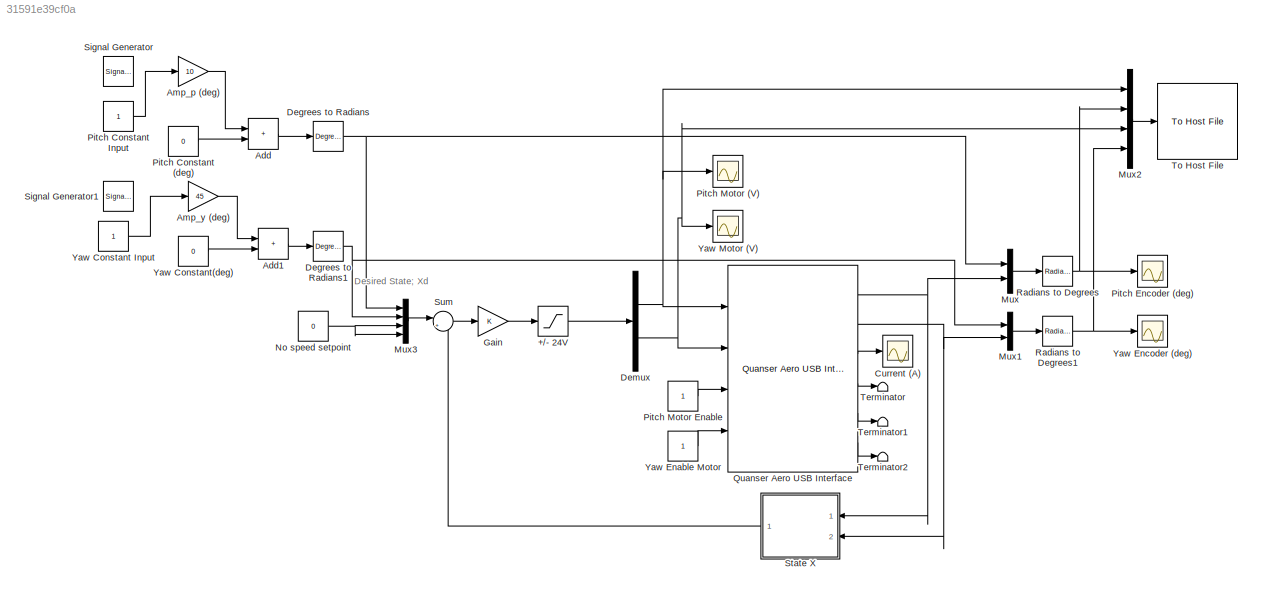
MODEL slx_31591e39cf0a
KIND model
CONFIG AbsTol = auto
CONFIG EnableMultiTasking = on
CONFIG FixedStep = 0.002
CONFIG MaxStep = auto
CONFIG MinStep = auto
CONFIG PreLoadFcn = quanser_aero_lqr
CONFIG RelTol = 1e-3
CONFIG SampleTimeConstraint = Unconstrained
CONFIG Solver = ode1
CONFIG SolverName = ode1
CONFIG StartTime = 0.0
CONFIG StopTime = inf
BLOCK [Saturate] +//- 24V
  LowerLimit = -24
  UpperLimit = 24
BLOCK [Sum] Add
  IconShape = rectangular
  Ports = [2, 1]
BLOCK [Sum] Add1
  IconShape = rectangular
  Ports = [2, 1]
BLOCK [Gain] Amp_p (deg)
  Gain = 10
BLOCK [Gain] Amp_y (deg)
  Gain = 45
BLOCK [Scope] Current (A)
  Floating = off
  NumInputPorts = 1
  Ports = [1]
  ScopeSpecificationString = C++SS(StrPVP('Location','[1218, 655, 1542, 894]'),StrPVP('Open','off'),MxPVP('AxesTitles',54,'struct(''axes1'',''%<SignalLabel>'')'),MxPVP('ScopeGraphics',57,'struct(''FigureColor'',''[0.5 0.5 0.5]'',''AxesColor'',''[0 0 0]'',''AxesTickColor'',''[1 1 1]'',''LineColors'',''[1 1 0;1 0 1;0 1 1;1 0 0;0 1 0;0 0 1]'',''LineStyles'',''-|-|-|-|-|-'',''LineWidths'',''[0.5 0.5 0.5 0.5 0.5 0.5]'',''MarkerSty...<+250ch>
BLOCK [Reference] Degrees to Radians  REF=simulink_extras/Transformations/Degrees to
Radians
  Ports = [1, 1]
  SourceBlock = simulink_extras/Transformations/Degrees to\nRadians
  SourceProductBaseCode = SL
  SourceType = DegreesToRadians
BLOCK [Reference] Degrees to Radians1  REF=simulink_extras/Transformations/Degrees to
Radians
  Ports = [1, 1]
  SourceBlock = simulink_extras/Transformations/Degrees to\nRadians
  SourceProductBaseCode = SL
  SourceType = DegreesToRadians
BLOCK [Demux] Demux
  Outputs = 2
  Ports = [1, 2]
BLOCK [Gain] Gain
  Gain = K
  Multiplication = Matrix(K*u)
BLOCK [Mux] Mux
  DisplayOption = bar
  Inputs = 2
  Ports = [2, 1]
BLOCK [Mux] Mux1
  DisplayOption = bar
  Inputs = 2
  Ports = [2, 1]
BLOCK [Mux] Mux2
  DisplayOption = bar
  Ports = [4, 1]
BLOCK [Mux] Mux3
  DisplayOption = bar
  Ports = [4, 1]
BLOCK [Constant] No speed setpoint
  Value = 0
BLOCK [Constant] Pitch Constant (deg)
  Value = 0
BLOCK [Constant] Pitch Constant Input
BLOCK [Scope] Pitch Encoder (deg)
  Floating = off
  NumInputPorts = 1
  Ports = [1]
  ScopeSpecificationString = Simulink.scopes.TimeScopeBlockCfg('CurrentConfiguration', extmgr.ConfigurationSet(extmgr.Configuration('Core','General UI',true),extmgr.Configuration('Core','Source UI',true),extmgr.Configuration('Sources','WiredSimulink',true,'DataLoggingVariableName','ScopeData3','DataLoggingMaxPoints','15000','DataLoggingLimitDataPoints',true,'DataLoggingSaveFormat','Array','DataLoggingDecimation','1','DataLogg...<+1786ch>
BLOCK [Scope] Pitch Motor (V)
  Floating = off
  NumInputPorts = 1
  Ports = [1]
  ScopeSpecificationString = Simulink.scopes.TimeScopeBlockCfg('CurrentConfiguration', extmgr.ConfigurationSet(extmgr.Configuration('Core','General UI',true),extmgr.Configuration('Core','Source UI',true),extmgr.Configuration('Sources','WiredSimulink',true,'DataLoggingVariableName','ScopeData2','DataLoggingMaxPoints','15000','DataLoggingLimitDataPoints',true,'DataLoggingSaveFormat','Array','DataLoggingDecimation','1','DataLogg...<+1750ch>
BLOCK [Constant] Pitch Motor Enable
BLOCK [Reference] Quanser Aero USB Interface  REF=quanser_aero/Quanser Aero USB Interface  (lib defined in slx_27f8158dc1f1, slx_88e45530731e)
  Ports = [4, 6]
  SourceBlock = quanser_aero/Quanser Aero USB Interface
  SourceType = SubSystem
BLOCK [Reference] Radians to Degrees  REF=simulink_extras/Transformations/Radians
to Degrees
  Ports = [1, 1]
  SourceBlock = simulink_extras/Transformations/Radians\nto Degrees
  SourceProductBaseCode = SL
  SourceType = RadiansToDegrees
BLOCK [Reference] Radians to Degrees1  REF=simulink_extras/Transformations/Radians
to Degrees
  Ports = [1, 1]
  SourceBlock = simulink_extras/Transformations/Radians\nto Degrees
  SourceProductBaseCode = SL
  SourceType = RadiansToDegrees
BLOCK [SignalGenerator] Signal Generator
  Frequency = 0.1
  Ports = [0, 1]
  WaveForm = square
BLOCK [SignalGenerator] Signal Generator1
  Frequency = 0.04
  Ports = [0, 1]
  WaveForm = square
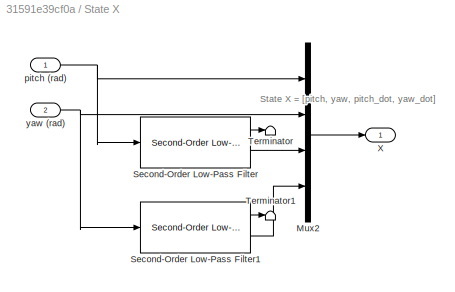
BLOCK [SubSystem] State X
  Ports = [2, 1]
  RequestExecContextInheritance = off
BLOCK [Mux] State X/Mux2
  DisplayOption = bar
  Ports = [4, 1]
BLOCK [Reference] State X/Second-Order Low-Pass Filter  REF=quarc_library/Continuous/Second-Order
Low-Pass Filter
  Ports = [1, 2]
  SourceBlock = quarc_library/Continuous/Second-Order\nLow-Pass Filter
  SourceProductName = QUARC Targets
  SourceType = Second-Order Low-Pass Filter
BLOCK [Reference] State X/Second-Order Low-Pass Filter1  REF=quarc_library/Continuous/Second-Order
Low-Pass Filter
  Ports = [1, 2]
  SourceBlock = quarc_library/Continuous/Second-Order\nLow-Pass Filter
  SourceProductName = QUARC Targets
  SourceType = Second-Order Low-Pass Filter
BLOCK [Terminator] State X/Terminator
BLOCK [Terminator] State X/Terminator1
BLOCK [Outport] State X/X
BLOCK [Inport] State X/pitch (rad)
BLOCK [Inport] State X/yaw (rad)
  Port = 2
BLOCK [Sum] Sum
  Inputs = |+-
  Ports = [2, 1]
BLOCK [Terminator] Terminator
BLOCK [Terminator] Terminator1
BLOCK [Terminator] Terminator2
BLOCK [Reference] To Host File  REF=quarc_library/Sinks/To Host/To Host File
  AttributesFormatString = %<final_file_name>
  Ports = [1]
  SourceBlock = quarc_library/Sinks/To Host/To Host File
  SourceProductName = QUARC Targets
  SourceType = To Host File
BLOCK [Constant] Yaw Constant Input
BLOCK [Constant] Yaw Constant(deg)
  Value = 0
BLOCK [Constant] Yaw Enable Motor
BLOCK [Scope] Yaw Encoder (deg)
  Floating = off
  NumInputPorts = 1
  Ports = [1]
  ScopeSpecificationString = Simulink.scopes.TimeScopeBlockCfg('CurrentConfiguration', extmgr.ConfigurationSet(extmgr.Configuration('Core','General UI',true),extmgr.Configuration('Core','Source UI',true),extmgr.Configuration('Sources','WiredSimulink',true,'DataLoggingVariableName','ScopeData4','DataLoggingMaxPoints','15000','DataLoggingLimitDataPoints',true,'DataLoggingSaveFormat','Array','DataLoggingDecimation','1','DataLogg...<+1793ch>
BLOCK [Scope] Yaw Motor (V)
  Floating = off
  NumInputPorts = 1
  Ports = [1]
  ScopeSpecificationString = Simulink.scopes.TimeScopeBlockCfg('CurrentConfiguration', extmgr.ConfigurationSet(extmgr.Configuration('Core','General UI',true),extmgr.Configuration('Core','Source UI',true),extmgr.Configuration('Sources','WiredSimulink',true,'DataLoggingVariableName','ScopeData5','DataLoggingMaxPoints','15000','DataLoggingLimitDataPoints',true,'DataLoggingSaveFormat','Array','DataLoggingDecimation','1','DataLogg...<+1751ch>
ANNOTATION (root): Desired State; Xd
ANNOTATION State X: State X = [pitch, yaw, pitch_dot, yaw_dot]
LINE +//- 24V:1 -> Demux:1
LINE Add1:1 -> Degrees to Radians1:1
LINE Add:1 -> Degrees to Radians:1
LINE Amp_p (deg):1 -> Add:1
LINE Amp_y (deg):1 -> Add1:1
NET Degrees to Radians1:1 -> Mux1:1, Mux3:2
NET Degrees to Radians:1 -> Mux3:1, Mux:1
NET Demux:1 -> Mux2:1, Pitch Motor (V):1, Quanser Aero USB Interface:1
NET Demux:2 -> Mux2:3, Quanser Aero USB Interface:2, Yaw Motor (V):1
LINE Gain:1 -> +//- 24V:1
LINE Mux1:1 -> Radians to Degrees1:1
LINE Mux2:1 -> To Host File:1
LINE Mux3:1 -> Sum:1
LINE Mux:1 -> Radians to Degrees:1
NET No speed setpoint:1 -> Mux3:3, Mux3:4
LINE Pitch Constant (deg):1 -> Add:2
LINE Pitch Constant Input:1 -> Amp_p (deg):1
LINE Pitch Motor Enable:1 -> Quanser Aero USB Interface:3
NET Quanser Aero USB Interface:1 -> Mux:2, State X:1
NET Quanser Aero USB Interface:2 -> Mux1:2, State X:2
LINE Quanser Aero USB Interface:3 -> Current (A):1
LINE Quanser Aero USB Interface:4 -> Terminator:1
LINE Quanser Aero USB Interface:5 -> Terminator1:1
LINE Quanser Aero USB Interface:6 -> Terminator2:1
NET Radians to Degrees1:1 -> Mux2:4, Yaw Encoder (deg):1
NET Radians to Degrees:1 -> Mux2:2, Pitch Encoder (deg):1
LINE State X/Mux2:1 -> State X/X:1
LINE State X/Second-Order Low-Pass Filter1:1 -> State X/Terminator1:1
LINE State X/Second-Order Low-Pass Filter1:2 -> State X/Mux2:4
LINE State X/Second-Order Low-Pass Filter:1 -> State X/Terminator:1
LINE State X/Second-Order Low-Pass Filter:2 -> State X/Mux2:3
NET State X/pitch (rad):1 -> State X/Mux2:1, State X/Second-Order Low-Pass Filter:1
NET State X/yaw (rad):1 -> State X/Mux2:2, State X/Second-Order Low-Pass Filter1:1
LINE State X:1 -> Sum:2
LINE Sum:1 -> Gain:1
LINE Yaw Constant Input:1 -> Amp_y (deg):1
LINE Yaw Constant(deg):1 -> Add1:2
LINE Yaw Enable Motor:1 -> Quanser Aero USB Interface:4
note: NET lines group one-source signal fan-out (src -> all destinations, sorted); 1:1 wires keep LINE
